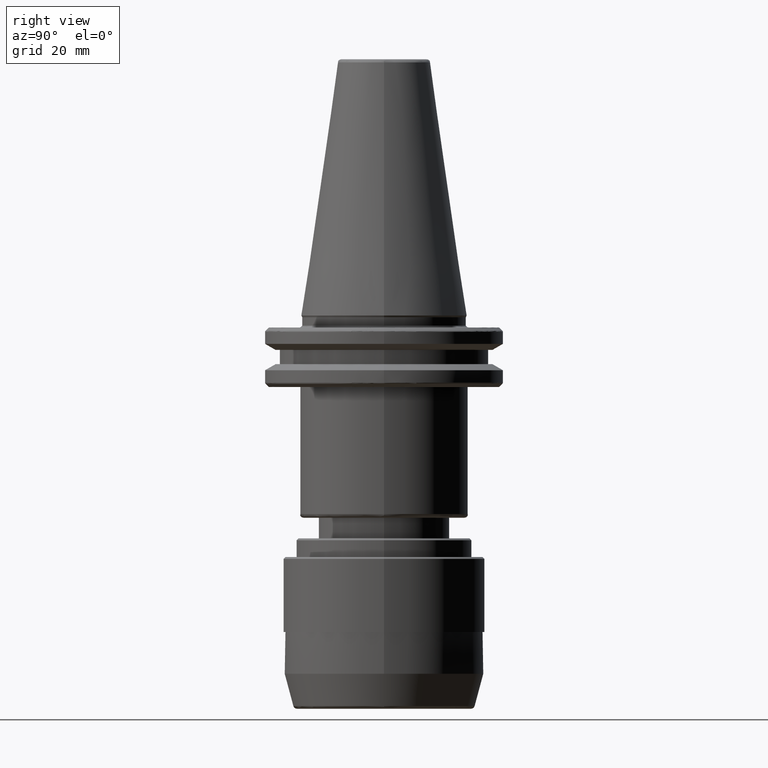
[diagram: clean part render]
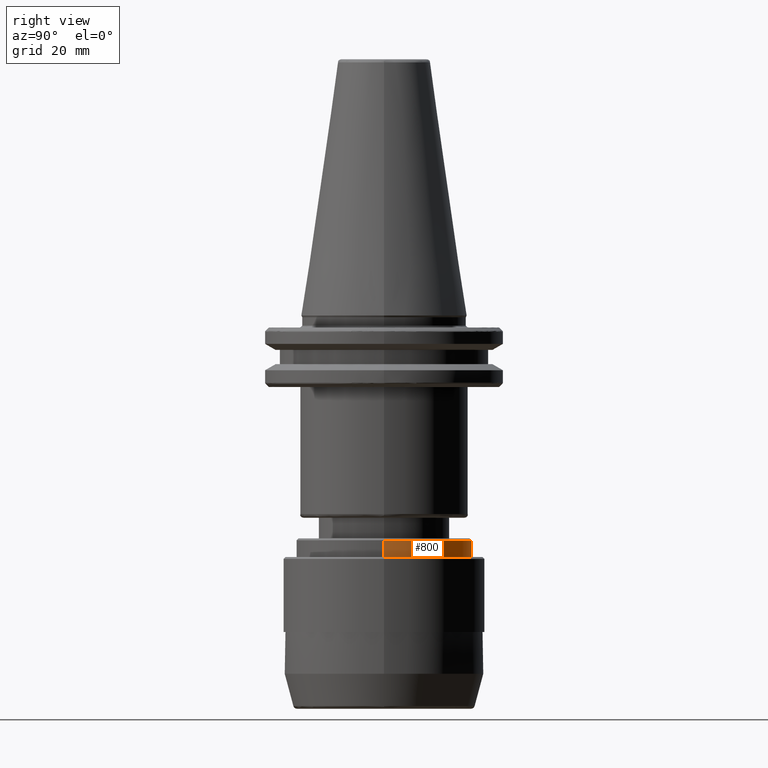
[diagram: same view with one face highlighted and labeled with its STEP entity id]
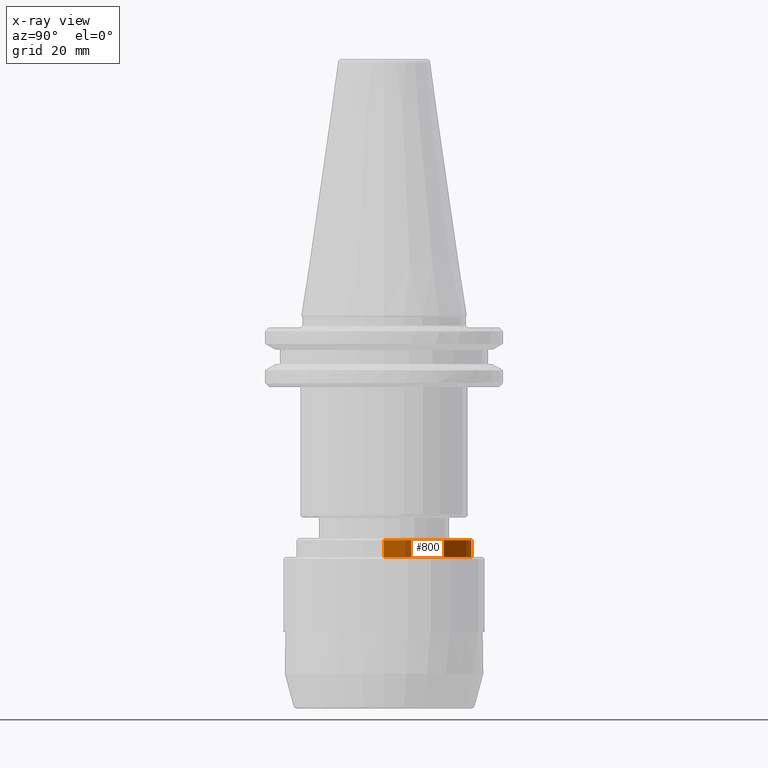
[diagram: x-ray of the same camera — body ghosted, the highlighted face saturated]
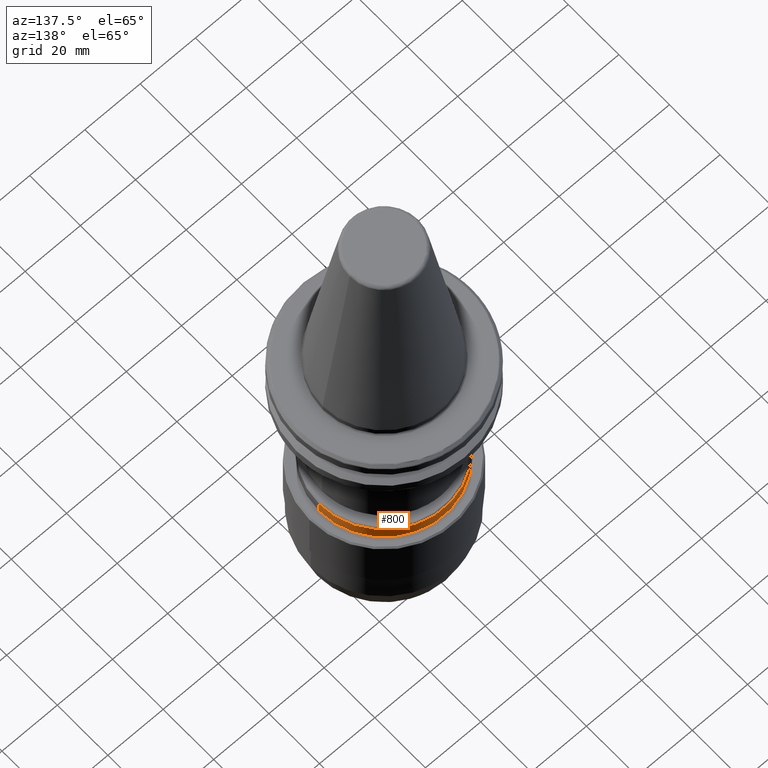
[diagram: same view with one face highlighted and labeled with its STEP entity id]
A machine part, right view. The second image highlights one B-rep face of the part: STEP entity #800.
The next image is the same camera in x-ray: the body ghosted, the highlighted face saturated — about 0% of this face is hidden behind the body in this view.
A second angle (auxiliary view) of the same face is appended — the face is thin or edge-on in the first view.
In plain terms, the highlighted cylindrical surface (partial cylindrical patch) has radius 23.5 mm, axis along (0, 0, 1).
Its self-contained STEP definition (entity closure, byte-faithful):
#12 = FACE_OUTER_BOUND ( 'NONE', #1013, .T. ) ;
#61 = EDGE_CURVE ( 'NONE', #2697, #2037, #2504, .T. ) ;
#132 = ORIENTED_EDGE ( 'NONE', *, *, #148, .T. ) ;
#138 = AXIS2_PLACEMENT_3D ( 'NONE', #2044, #1277, #2804 ) ;
#148 = EDGE_CURVE ( 'NONE', #2037, #1602, #1839, .T. ) ;
#179 = DIRECTION ( 'NONE',  ( 0.0000000000000000000, 0.0000000000000000000, 1.000000000000000000 ) ) ;
#338 = CYLINDRICAL_SURFACE ( 'NONE', #138, 23.50000000000000000 ) ;
#526 = CARTESIAN_POINT ( 'NONE',  ( 23.50000000000000000, 0.0000000000000000000, -64.50000000000000000 ) ) ;
#603 = ORIENTED_EDGE ( 'NONE', *, *, #61, .T. ) ;
#605 = DIRECTION ( 'NONE',  ( 0.0000000000000000000, 0.0000000000000000000, 1.000000000000000000 ) ) ;
#800 = ADVANCED_FACE ( 'NONE', ( #12 ), #338, .T. ) ;
#860 = AXIS2_PLACEMENT_3D ( 'NONE', #3206, #179, #2135 ) ;
#1013 = EDGE_LOOP ( 'NONE', ( #603, #132, #1571, #3236 ) ) ;
#1277 = DIRECTION ( 'NONE',  ( 0.0000000000000000000, 0.0000000000000000000, 1.000000000000000000 ) ) ;
#1420 = CARTESIAN_POINT ( 'NONE',  ( 0.0000000000000000000, 0.0000000000000000000, -60.00000000000001400 ) ) ;
#1443 = AXIS2_PLACEMENT_3D ( 'NONE', #1420, #3186, #1686 ) ;
#1538 = VERTEX_POINT ( 'NONE', #3144 ) ;
#1571 = ORIENTED_EDGE ( 'NONE', *, *, #1766, .F. ) ;
#1602 = VERTEX_POINT ( 'NONE', #1874 ) ;
#1604 = LINE ( 'NONE', #3292, #2208 ) ;
#1686 = DIRECTION ( 'NONE',  ( -1.000000000000000000, 0.0000000000000000000, 0.0000000000000000000 ) ) ;
#1766 = EDGE_CURVE ( 'NONE', #1538, #1602, #2443, .T. ) ;
#1795 = DIRECTION ( 'NONE',  ( 0.0000000000000000000, 0.0000000000000000000, 1.000000000000000000 ) ) ;
#1839 = LINE ( 'NONE', #2062, #3090 ) ;
#1874 = CARTESIAN_POINT ( 'NONE',  ( -23.50000000000000000, 2.877919977996280300E-015, -60.00000000000001400 ) ) ;
#2037 = VERTEX_POINT ( 'NONE', #2073 ) ;
#2044 = CARTESIAN_POINT ( 'NONE',  ( 0.0000000000000000000, 0.0000000000000000000, 0.0000000000000000000 ) ) ;
#2062 = CARTESIAN_POINT ( 'NONE',  ( -23.50000000000000000, 2.877919977996280300E-015, 0.0000000000000000000 ) ) ;
#2073 = CARTESIAN_POINT ( 'NONE',  ( -23.50000000000000000, 2.877919977996280300E-015, -64.50000000000000000 ) ) ;
#2135 = DIRECTION ( 'NONE',  ( 1.000000000000000000, 0.0000000000000000000, 0.0000000000000000000 ) ) ;
#2208 = VECTOR ( 'NONE', #1795, 1000.000000000000000 ) ;
#2443 = CIRCLE ( 'NONE', #1443, 23.50000000000000000 ) ;
#2504 = CIRCLE ( 'NONE', #860, 23.50000000000000000 ) ;
#2567 = EDGE_CURVE ( 'NONE', #2697, #1538, #1604, .T. ) ;
#2697 = VERTEX_POINT ( 'NONE', #526 ) ;
#2804 = DIRECTION ( 'NONE',  ( 1.000000000000000000, 0.0000000000000000000, 0.0000000000000000000 ) ) ;
#3090 = VECTOR ( 'NONE', #605, 1000.000000000000000 ) ;
#3144 = CARTESIAN_POINT ( 'NONE',  ( 23.50000000000000000, 0.0000000000000000000, -60.00000000000001400 ) ) ;
#3186 = DIRECTION ( 'NONE',  ( -0.0000000000000000000, -0.0000000000000000000, 1.000000000000000000 ) ) ;
#3206 = CARTESIAN_POINT ( 'NONE',  ( 0.0000000000000000000, 0.0000000000000000000, -64.50000000000000000 ) ) ;
#3236 = ORIENTED_EDGE ( 'NONE', *, *, #2567, .F. ) ;
#3292 = CARTESIAN_POINT ( 'NONE',  ( 23.50000000000000000, 0.0000000000000000000, 0.0000000000000000000 ) ) ;